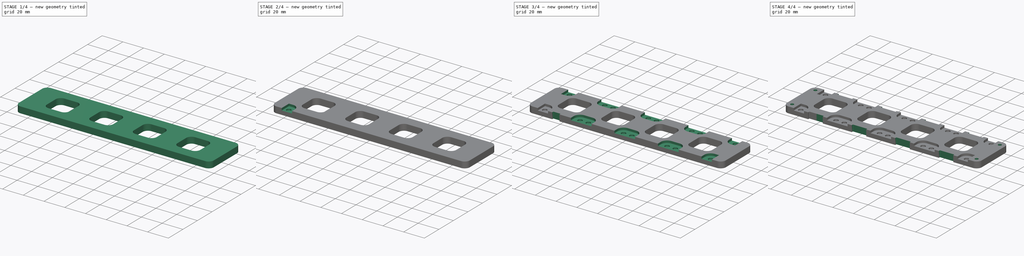
[diagram: build sequence overview — one tinted view per stage of 4, left to right]
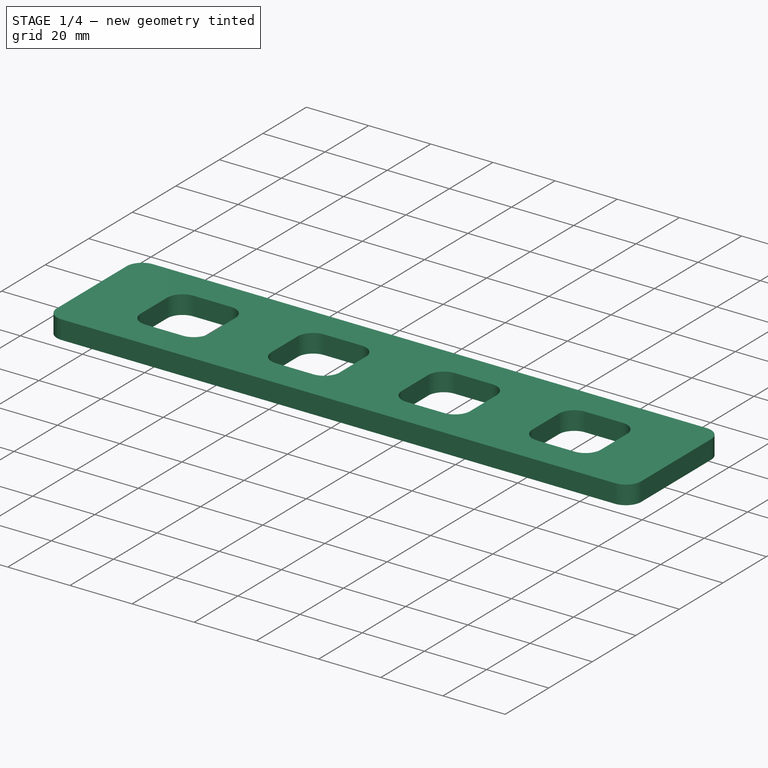
[diagram: stage 1 of 4 — iso view after this stage's code; geometry added in this stage tinted green]
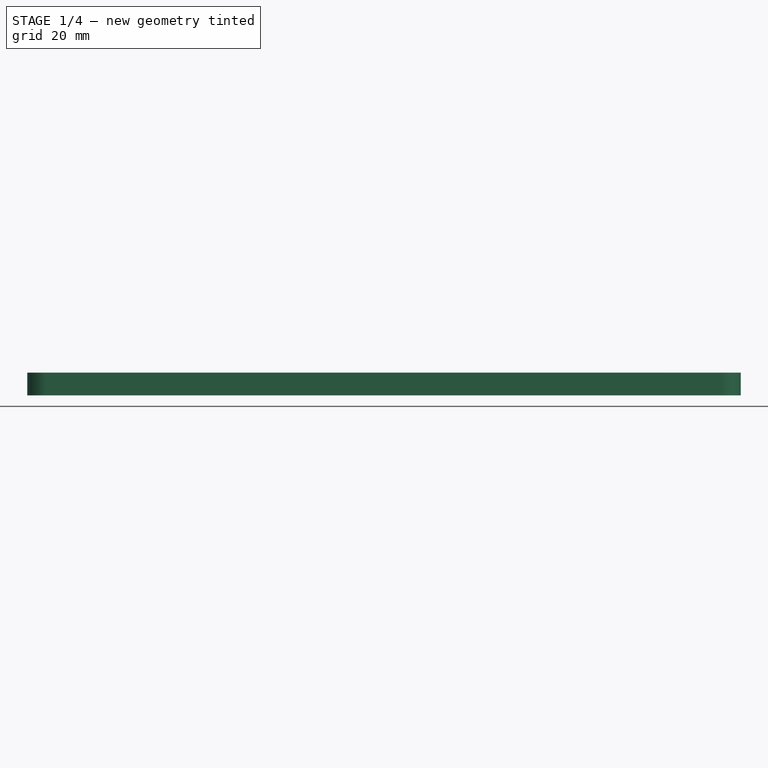
[diagram: stage 1 of 4 — front view after this stage's code; geometry added in this stage tinted green]
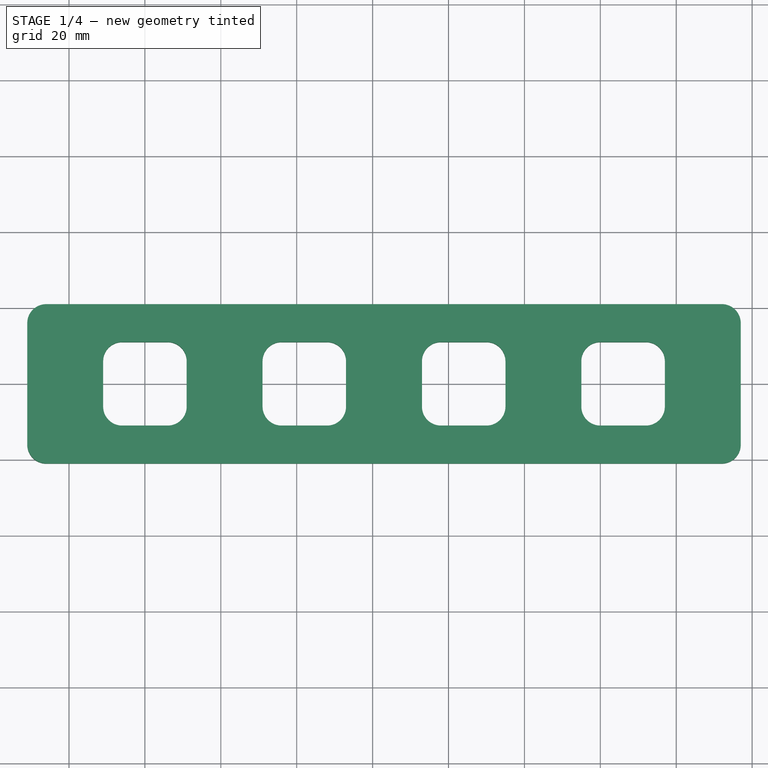
[diagram: stage 1 of 4 — top view after this stage's code; geometry added in this stage tinted green]
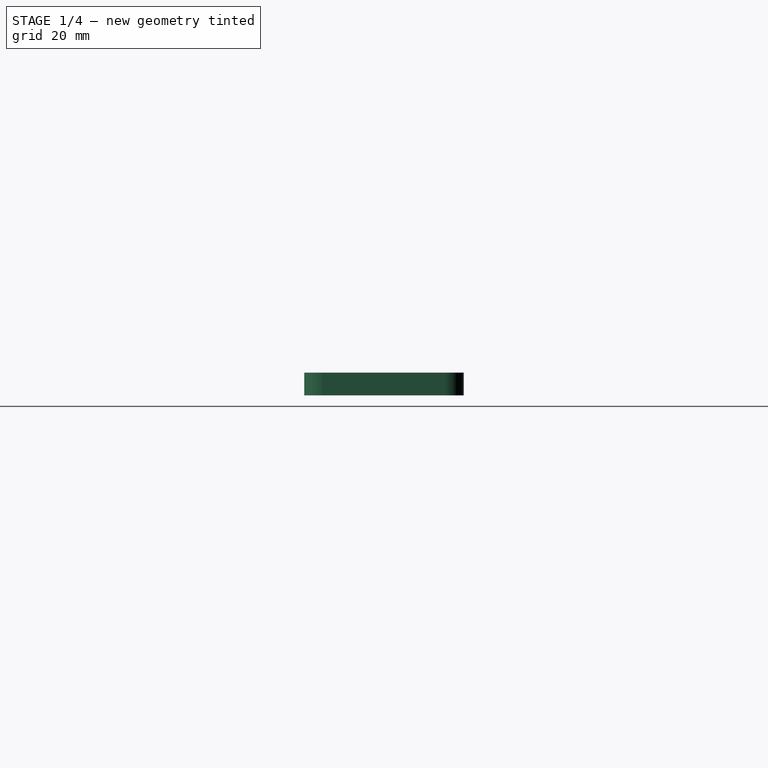
[diagram: stage 1 of 4 — right view after this stage's code; geometry added in this stage tinted green]
FCSTD DOCUMENT  (FreeCAD 0.19R)
Label: Bar
License: All rights reserved
LicenseURL: http://en.wikipedia.org/wiki/All_rights_reserved
objects: Sketcher::SketchObject×8, PartDesign::Mirrored×5, PartDesign::Pocket×4, PartDesign::LinearPattern×4, PartDesign::MultiTransform×3, PartDesign::Hole×2, PartDesign::Pad×1, PartDesign::Body×1
note: 35 computed .brp shape members not serialized (recipe doc carries the construction recipe); baked Part::Feature solids carry a one-line shape summary decoded from their .brp

FEATURE [Sketcher::SketchObject] Sketch  label="base_sketch"
  FullyConstrained = true
  MapMode = 5
  Support = -> [XY_Plane]
  sketch-geometry (12):
    g0: LineSegment StartX=-26 StartY=-21 StartZ=0 EndX=152 EndY=-21 EndZ=0
    g1: LineSegment StartX=157 StartY=-16 StartZ=0 EndX=157 EndY=16 EndZ=0
    g2: LineSegment StartX=152 StartY=21 StartZ=0 EndX=-26 EndY=21 EndZ=0
    g3: LineSegment StartX=-31 StartY=16 StartZ=0 EndX=-31 EndY=-16 EndZ=0
    g4: ArcOfCircle CenterX=-26 CenterY=16 CenterZ=0 NormalX=0 NormalY=0 NormalZ=1 AngleXU=0 Radius=5 StartAngle=1.5708 EndAngle=3.14159
    g5: GeomPoint X=-31 Y=21 Z=0
    g6: ArcOfCircle CenterX=-26 CenterY=-16 CenterZ=0 NormalX=0 NormalY=0 NormalZ=1 AngleXU=0 Radius=5 StartAngle=3.14159 EndAngle=4.71239
    g7: GeomPoint X=-31 Y=-21 Z=0
    g8: ArcOfCircle CenterX=152 CenterY=-16 CenterZ=0 NormalX=0 NormalY=0 NormalZ=1 AngleXU=0 Radius=5 StartAngle=4.71239 EndAngle=6.28319
    g9: GeomPoint X=157 Y=-21 Z=0
    g10: ArcOfCircle CenterX=152 CenterY=16 CenterZ=0 NormalX=0 NormalY=0 NormalZ=1 AngleXU=0 Radius=5 StartAngle=0 EndAngle=1.5708
    g11: GeomPoint X=157 Y=21 Z=0
  constraints (28):
    c: Horizontal(g0)
    c: Horizontal(g2)
    c: Vertical(g1)
    c: Vertical(g3)
    c: Distance(g-1,g3) = 31
    c: Distance(g7,g5) = 42
    c: Distance(g-1,g0) = 21
    c: Distance(g11,g5) = 188
    c: PointOnObject(g5,g2)
    c: PointOnObject(g5,g3)
    c: Tangent(g2,g4) = -1.5708
    c: Tangent(g3,g4) = -1.5708
    c: PointOnObject(g7,g3)
    c: PointOnObject(g7,g0)
    c: Tangent(g3,g6) = -1.5708
    c: Tangent(g0,g6) = -1.5708
    c: PointOnObject(g9,g0)
    c: PointOnObject(g9,g1)
    c: Tangent(g0,g8) = -1.5708
    c: Tangent(g1,g8) = -1.5708
    c: PointOnObject(g11,g1)
    c: PointOnObject(g11,g2)
    c: Tangent(g1,g10) = -1.5708
    c: Tangent(g2,g10) = -1.5708
    c: Radius(g6) = 5
    c: Equal(g10,g6)
    c: Equal(g8,g6)
    c: Equal(g4,g6)
FEATURE [PartDesign::Pad] Pad  label="base_pad"
  Direction = (1,1,1)
  Length = 6
  Length2 = 100
  Midplane = true
  Profile = -> Sketch
  Type = 0
FEATURE [Sketcher::SketchObject] Sketch001  label="center_hole_sketch"
  FullyConstrained = true
  MapMode = 5
  Placement = pos=(0,0,3) rot=(0,0,1;0rad)
  Support = -> [Pad]
  sketch-geometry (12):
    g0: LineSegment StartX=-6 StartY=-11 StartZ=0 EndX=6 EndY=-11 EndZ=0
    g1: LineSegment StartX=11 StartY=-6 StartZ=0 EndX=11 EndY=6 EndZ=0
    g2: LineSegment StartX=6 StartY=11 StartZ=0 EndX=-6 EndY=11 EndZ=0
    g3: LineSegment StartX=-11 StartY=6 StartZ=0 EndX=-11 EndY=-6 EndZ=0
    g4: ArcOfCircle CenterX=6 CenterY=-6 CenterZ=0 NormalX=0 NormalY=0 NormalZ=1 AngleXU=0 Radius=5 StartAngle=4.71239 EndAngle=6.28319
    g5: GeomPoint X=11 Y=-11 Z=0
    g6: ArcOfCircle CenterX=6 CenterY=6 CenterZ=0 NormalX=0 NormalY=0 NormalZ=1 AngleXU=0 Radius=5 StartAngle=0 EndAngle=1.5708
    g7: GeomPoint X=11 Y=11 Z=0
    g8: ArcOfCircle CenterX=-6 CenterY=6 CenterZ=0 NormalX=0 NormalY=0 NormalZ=1 AngleXU=0 Radius=5 StartAngle=1.5708 EndAngle=3.14159
    g9: GeomPoint X=-11 Y=11 Z=0
    g10: ArcOfCircle CenterX=-6 CenterY=-6 CenterZ=0 NormalX=0 NormalY=0 NormalZ=1 AngleXU=0 Radius=5 StartAngle=3.14159 EndAngle=4.71239
    g11: GeomPoint X=-11 Y=-11 Z=0
  constraints (27):
    c: Horizontal(g0)
    c: Horizontal(g2)
    c: Vertical(g1)
    c: Vertical(g3)
    c: Symmetric(g7,g11,g-1)
    c: DistanceX(g9,g7) = 22
    c: DistanceY(g5,g7) = 22
    c: PointOnObject(g5,g1)
    c: PointOnObject(g5,g0)
    c: Tangent(g1,g4) = -1.5708
    c: Tangent(g0,g4) = -1.5708
    c: PointOnObject(g7,g2)
    c: PointOnObject(g7,g1)
    c: Tangent(g2,g6) = -1.5708
    c: Tangent(g1,g6) = -1.5708
    c: PointOnObject(g9,g2)
    c: PointOnObject(g9,g3)
    c: Tangent(g2,g8) = -1.5708
    c: Tangent(g3,g8) = -1.5708
    c: PointOnObject(g11,g3)
    c: PointOnObject(g11,g0)
    c: Tangent(g3,g10) = -1.5708
    c: Tangent(g0,g10) = -1.5708
    c: Radius(g10) = 5
    c: Equal(g4,g10)
    c: Equal(g10,g8)
    c: Equal(g10,g6)
FEATURE [PartDesign::Pocket] Pocket  label="center_hole"
  BaseFeature = -> Pad
  Length = 5
  Length2 = 100
  Profile = -> Sketch001
  Type = 1
FEATURE [PartDesign::LinearPattern] LinearPattern  label="center_hole_array"
  BaseFeature = -> Pocket
  Direction = -> Sketch001 [H_Axis]
  Length = 126
  Occurrences = 4
  Originals = -> [Pocket]
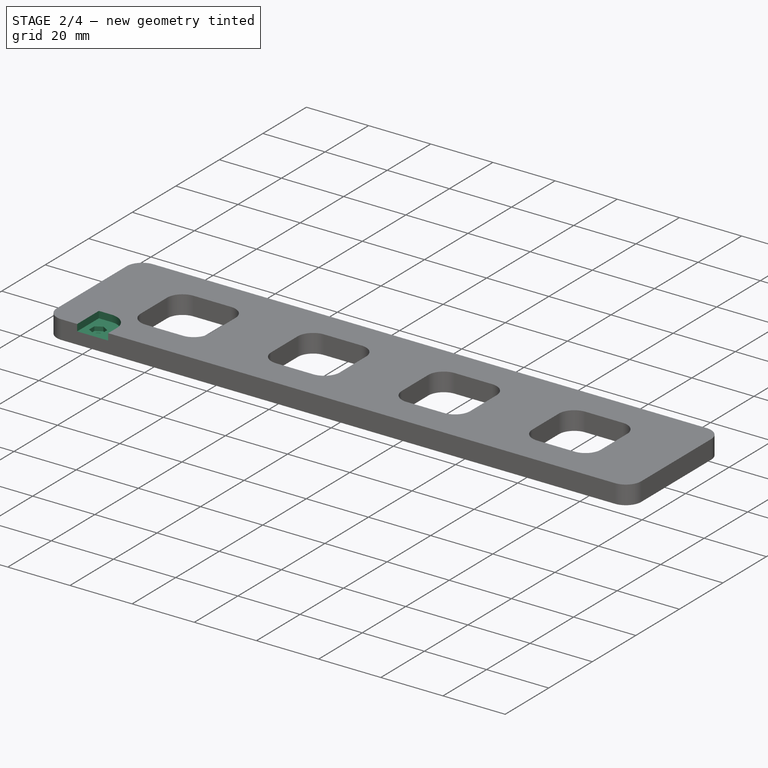
[diagram: stage 2 of 4 — iso view after this stage's code; geometry added in this stage tinted green]
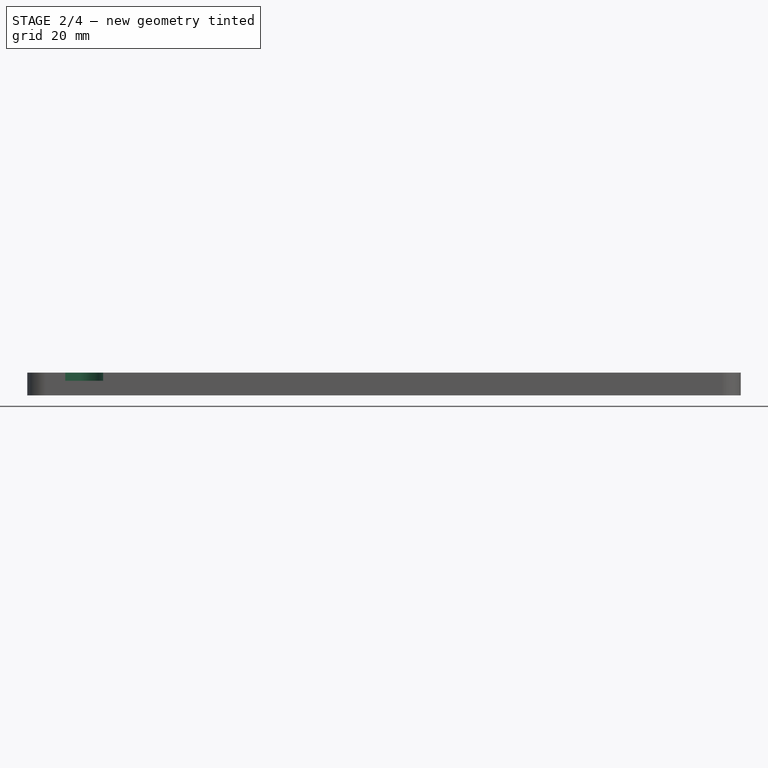
[diagram: stage 2 of 4 — front view after this stage's code; geometry added in this stage tinted green]
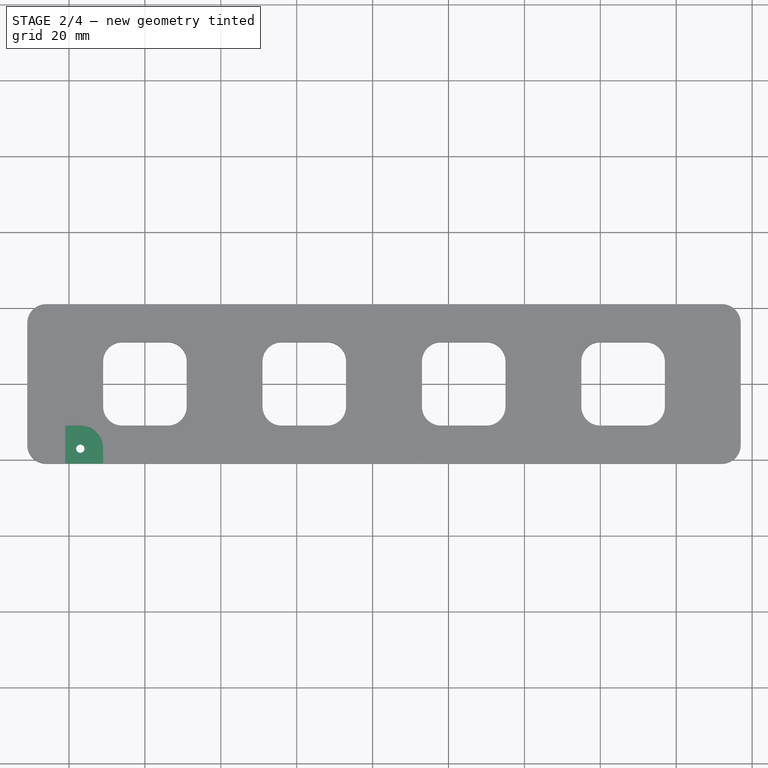
[diagram: stage 2 of 4 — top view after this stage's code; geometry added in this stage tinted green]
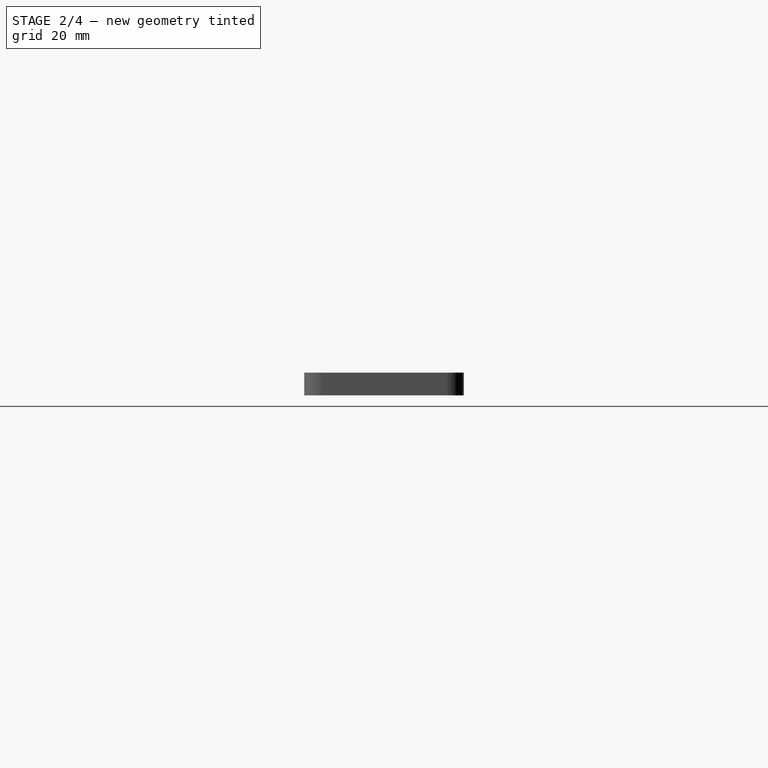
[diagram: stage 2 of 4 — right view after this stage's code; geometry added in this stage tinted green]
FEATURE [Sketcher::SketchObject] Sketch002  label="thumb_hole_sketch"
  ExternalGeometry = -> [LinearPattern]
  FullyConstrained = true
  MapMode = 5
  Placement = pos=(0,0,3) rot=(0,0,1;0rad)
  Support = -> [LinearPattern]
  sketch-geometry (5):
    g0: ArcOfCircle CenterX=-17.02 CenterY=-17.02 CenterZ=0 NormalX=0 NormalY=0 NormalZ=1 AngleXU=0 Radius=6 StartAngle=2e-16 EndAngle=1.5708
    g1: LineSegment StartX=-11.02 StartY=-17.02 StartZ=0 EndX=-11.02 EndY=-21 EndZ=0
    g2: LineSegment StartX=-21 StartY=-21 StartZ=0 EndX=-21 EndY=-11.02 EndZ=0
    g3: LineSegment StartX=-21 StartY=-21 StartZ=0 EndX=-11.02 EndY=-21 EndZ=0
    g4: LineSegment StartX=-17.02 StartY=-11.02 StartZ=0 EndX=-21 EndY=-11.02 EndZ=0
  constraints (14):
    c: Distance(g0,g-2) = 17.02
    c: Distance(g0,g-1) = 17.02
    c: Radius(g0) = 6
    c: PointOnObject(g1,g-3)
    c: PointOnObject(g2,g-3)
    c: Tangent(g0,g1) = 1.5708
    c: Vertical(g1)
    c: Vertical(g2)
    c: Coincident(g3,g2)
    c: Coincident(g3,g1)
    c: Distance(g2,g-2) = 21
    c: Horizontal(g4)
    c: Coincident(g2,g4)
    c: Tangent(g0,g4) = -1.5708
FEATURE [PartDesign::Pocket] Pocket001  label="thumb_hole"
  BaseFeature = -> LinearPattern
  Length = 5
  Length2 = 100
  Offset = -3.85
  Profile = -> Sketch002
  Type = 2
FEATURE [Sketcher::SketchObject] Sketch003  label="M2_hex_countersink_sketch"
  ExternalGeometry = -> [Pocket001]
  FullyConstrained = true
  MapMode = 5
  Placement = pos=(0,0,0.85) rot=(0,0,1;0rad)
  sketch-geometry (7):
    g0: LineSegment StartX=-17.02 StartY=-14.6182 StartZ=0 EndX=-19.1 EndY=-15.8191 EndZ=0
    g1: LineSegment StartX=-19.1 StartY=-15.8191 StartZ=0 EndX=-19.1 EndY=-18.2209 EndZ=0
    g2: LineSegment StartX=-19.1 StartY=-18.2209 StartZ=0 EndX=-17.02 EndY=-19.4218 EndZ=0
    g3: LineSegment StartX=-17.02 StartY=-19.4218 StartZ=0 EndX=-14.94 EndY=-18.2209 EndZ=0
    g4: LineSegment StartX=-14.94 StartY=-18.2209 StartZ=0 EndX=-14.94 EndY=-15.8191 EndZ=0
    g5: LineSegment StartX=-14.94 StartY=-15.8191 StartZ=0 EndX=-17.02 EndY=-14.6182 EndZ=0
    g6: Circle CenterX=-17.02 CenterY=-17.02 CenterZ=0 NormalX=0 NormalY=0 NormalZ=1 AngleXU=0 Radius=2.40178
  constraints (16):
    c: Coincident(g0,g1)
    c: Coincident(g1,g2)
    c: Coincident(g2,g3)
    c: Coincident(g3,g4)
    c: Coincident(g4,g5)
    c: Coincident(g5,g0)
    c: Equal(g0, g1-g5) x5
    c: PointOnObject(g0,g6)
    c: PointOnObject(g1,g6)
    c: PointOnObject(g2,g6)
    c: PointOnObject(g3,g6)
    c: PointOnObject(g4,g6)
    c: PointOnObject(g5,g6)
    c: Vertical(g1)
    c: DistanceX(g0,g4) = 4.16
    c: Coincident(g6,g-3)
FEATURE [PartDesign::Pocket] Pocket002  label="M2_hex_countersink"
  BaseFeature = -> Pocket001
  Length = 1.35
  Length2 = 100
  Profile = -> Sketch003
  Type = 0
FEATURE [Sketcher::SketchObject] Sketch004  label="M2_hole_sketch"
  ExternalGeometry = -> [Pocket002]
  FullyConstrained = true
  MapMode = 5
  Placement = pos=(0,0,-0.5) rot=(0,0,1;0rad)
  Support = -> [Pocket002]
  sketch-geometry (1):
    g0: Circle CenterX=-17.02 CenterY=-17.02 CenterZ=0 NormalX=0 NormalY=0 NormalZ=1 AngleXU=0 Radius=1.05
  constraints (2):
    c: Coincident(g0,g-3)
    c: Radius(g0) = 1.05
FEATURE [PartDesign::Hole] Hole  label="M2_hole"
  BaseFeature = -> Pocket002
  Depth = 25
  DepthType = 1
  Diameter = 2.2
  DrillForDepth = false
  DrillPoint = 1
  DrillPointAngle = 118
  HoleCutCountersinkAngle = 90
  HoleCutCustomValues = false
  HoleCutDepth = 0
  HoleCutDiameter = 6.1
  HoleCutType = 0
  ModelActualThread = false
  Profile = -> Sketch004
  Tapered = false
  TaperedAngle = 90
  ThreadAngle = 0
  ThreadClass = 0
  ThreadCutOffInner = 0
  ThreadCutOffOuter = 0
  ThreadDirection = 0
  ThreadFit = 1
  ThreadPitch = 0
  ThreadSize = 6
  ThreadType = 1
  Threaded = false
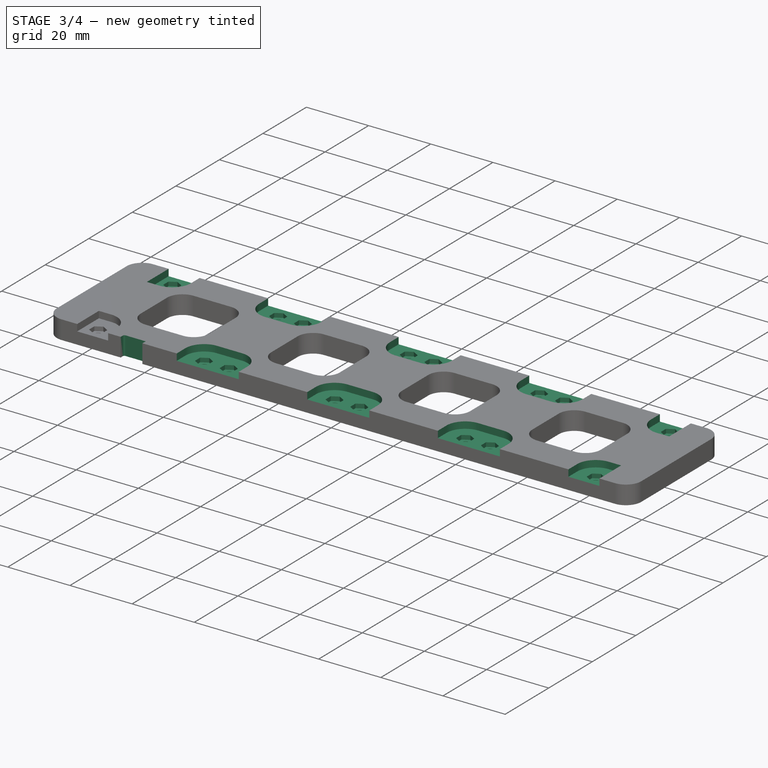
[diagram: stage 3 of 4 — iso view after this stage's code; geometry added in this stage tinted green]
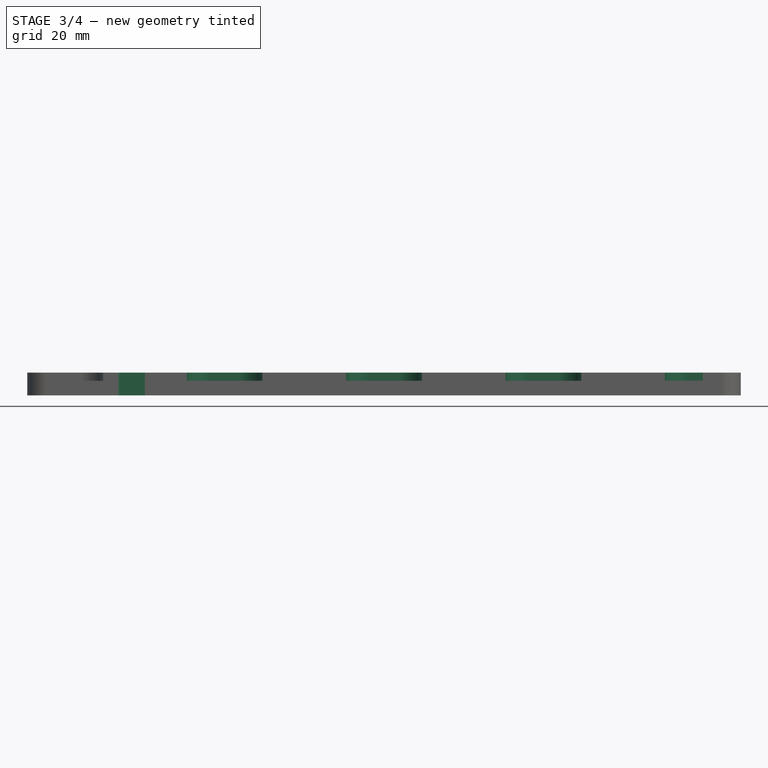
[diagram: stage 3 of 4 — front view after this stage's code; geometry added in this stage tinted green]
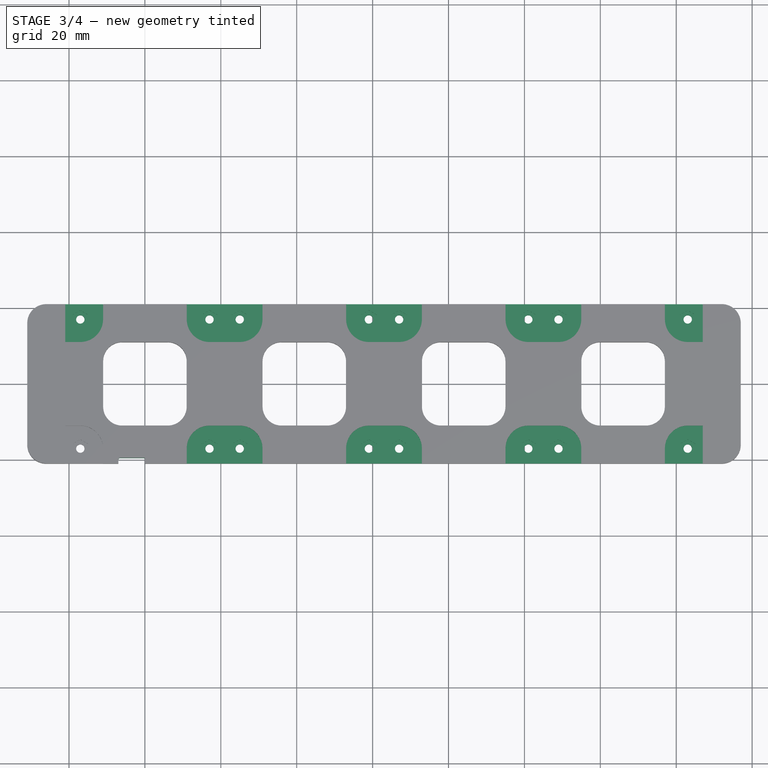
[diagram: stage 3 of 4 — top view after this stage's code; geometry added in this stage tinted green]
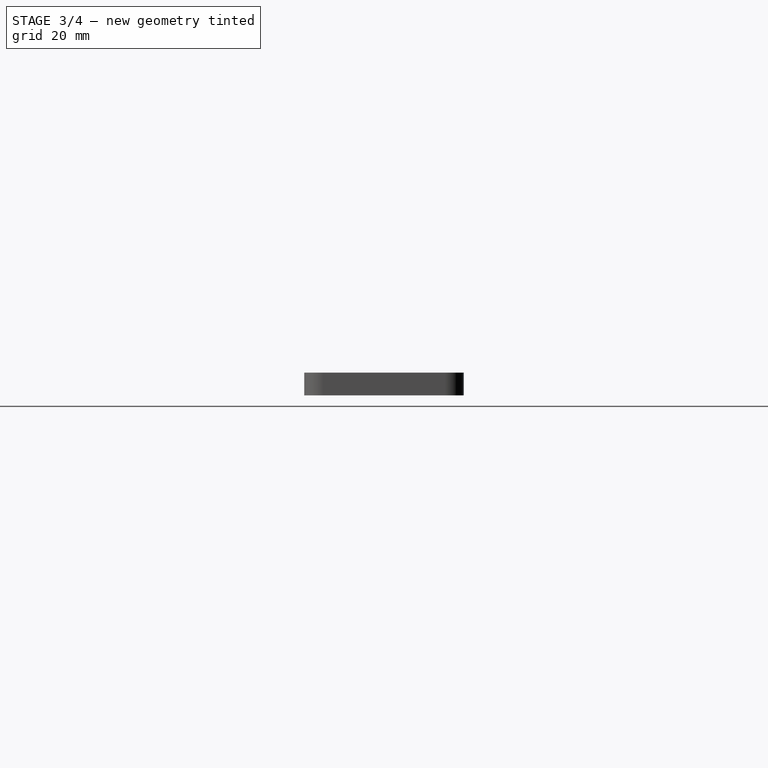
[diagram: stage 3 of 4 — right view after this stage's code; geometry added in this stage tinted green]
FEATURE [PartDesign::Mirrored] Mirrored
  MirrorPlane = -> Sketch002 [V_Axis]
FEATURE [PartDesign::Mirrored] Mirrored001
  MirrorPlane = -> Sketch002 [H_Axis]
FEATURE [PartDesign::LinearPattern] LinearPattern001
  Direction = -> Sketch002 [H_Axis]
  Length = 126
  Occurrences = 4
FEATURE [PartDesign::MultiTransform] MultiTransform  label="M2_system_array"
  BaseFeature = -> Hole
  Originals = -> [Pocket001,Pocket002,Hole]
  Transformations = -> [Mirrored,LinearPattern001,Mirrored001]
FEATURE [Sketcher::SketchObject] Sketch005  label="cable_hole_sketch"
  ExternalGeometry = -> [MultiTransform]
  FullyConstrained = true
  MapMode = 5
  Placement = pos=(0,0,3) rot=(0,0,1;0rad)
  Support = -> [MultiTransform]
  sketch-geometry (6):
    g0: LineSegment StartX=-7 StartY=-21 StartZ=0 EndX=0 EndY=-21 EndZ=0
    g1: LineSegment StartX=0 StartY=-21 StartZ=0 EndX=0 EndY=-19.5 EndZ=0
    g2: LineSegment StartX=0 StartY=-19.5 StartZ=0 EndX=-6.5 EndY=-19.5 EndZ=0
    g3: LineSegment StartX=-7 StartY=-20 StartZ=0 EndX=-7 EndY=-21 EndZ=0
    g4: ArcOfCircle CenterX=-6.5 CenterY=-20 CenterZ=0 NormalX=0 NormalY=0 NormalZ=1 AngleXU=0 Radius=0.5 StartAngle=1.5708 EndAngle=3.14159
    g5: GeomPoint X=-7 Y=-19.5 Z=0
  constraints (16):
    c: Coincident(g0,g1)
    c: Coincident(g1,g2)
    c: Coincident(g3,g0)
    c: Horizontal(g0)
    c: Horizontal(g2)
    c: Vertical(g1)
    c: Vertical(g3)
    c: PointOnObject(g0,g-3)
    c: Vertical(g1,g-1)
    c: PointOnObject(g5,g3)
    c: PointOnObject(g5,g2)
    c: Tangent(g3,g4) = -1.5708
    c: Tangent(g2,g4) = -1.5708
    c: Radius(g4) = 0.5
    c: DistanceY(g1,g1) = 1.5
    c: DistanceX(g0,g0) = 7
FEATURE [PartDesign::Pocket] Pocket003  label="cable_hole"
  BaseFeature = -> MultiTransform
  Length = 5
  Length2 = 100
  Profile = -> Sketch005
  Type = 1
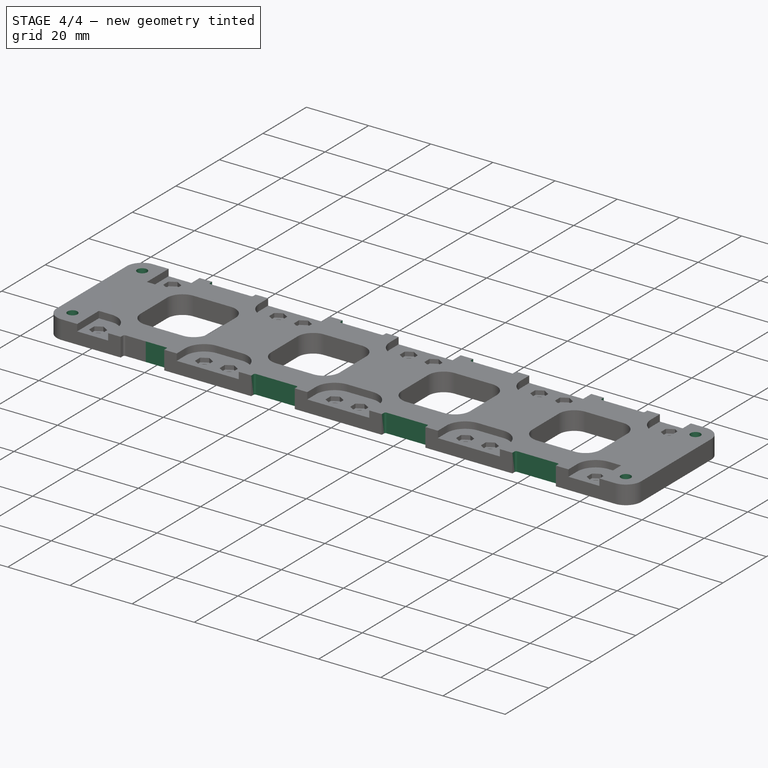
[diagram: stage 4 of 4 — iso view after this stage's code; geometry added in this stage tinted green]
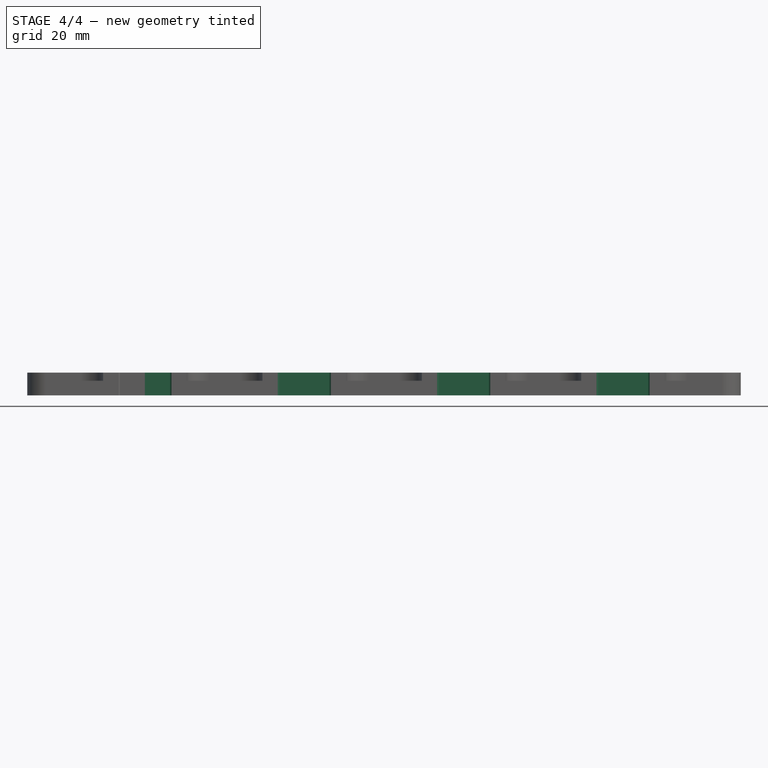
[diagram: stage 4 of 4 — front view after this stage's code; geometry added in this stage tinted green]
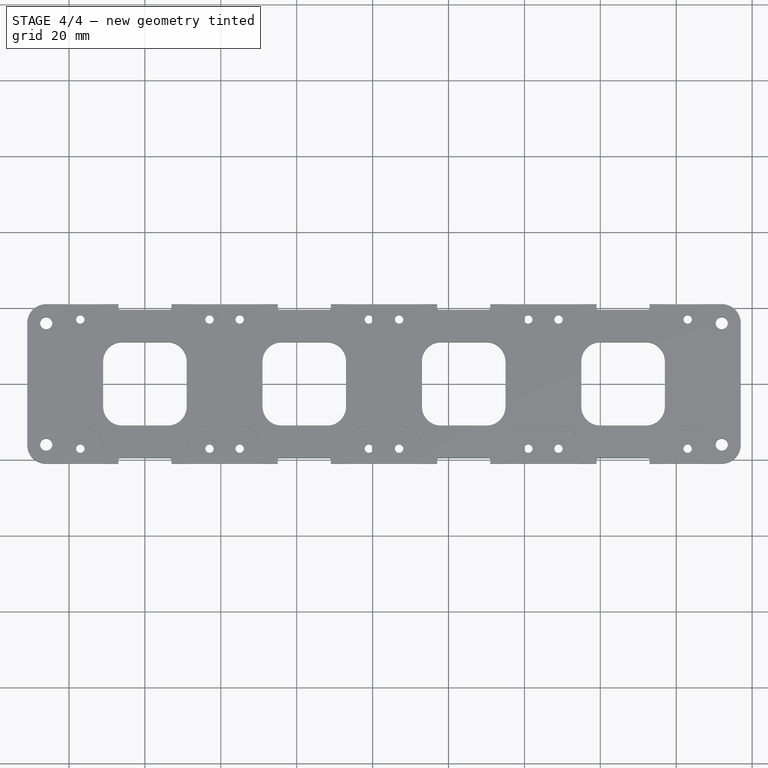
[diagram: stage 4 of 4 — top view after this stage's code; geometry added in this stage tinted green]
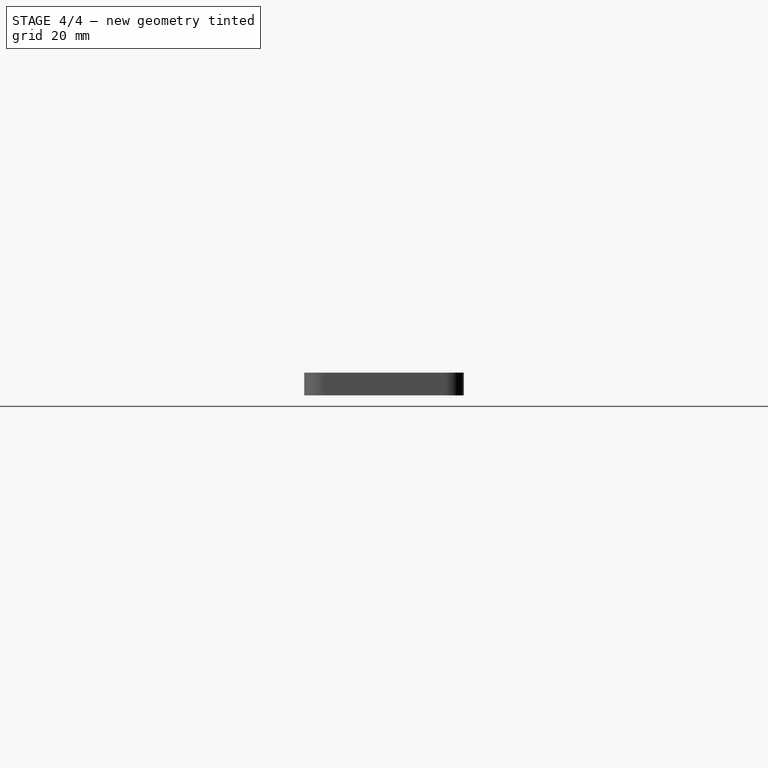
[diagram: stage 4 of 4 — right view after this stage's code; geometry added in this stage tinted green]
FEATURE [PartDesign::Mirrored] Mirrored002
  MirrorPlane = -> Sketch005 [V_Axis]
FEATURE [PartDesign::Mirrored] Mirrored003
  MirrorPlane = -> Sketch005 [H_Axis]
FEATURE [PartDesign::LinearPattern] LinearPattern002
  Direction = -> Sketch005 [H_Axis]
  Length = 126
  Occurrences = 4
FEATURE [PartDesign::MultiTransform] MultiTransform001  label="cable_hole_array"
  BaseFeature = -> Pocket003
  Originals = -> [Pocket003]
  Transformations = -> [Mirrored002,Mirrored003,LinearPattern002]
FEATURE [Sketcher::SketchObject] Sketch006  label="M3_hole_sketch"
  ExternalGeometry = -> [MultiTransform001]
  FullyConstrained = false
  MapMode = 5
  Placement = pos=(0,0,3) rot=(0,0,1;0rad)
  Support = -> [MultiTransform001]
  sketch-geometry (2):
    g0: GeomPoint X=-26 Y=-16 Z=0
    g1: Circle CenterX=-26 CenterY=-16 CenterZ=0 NormalX=0 NormalY=0 NormalZ=1 AngleXU=0 Radius=0.894573
  constraints (3):
    c: Distance(g0,g-3) = 5
    c: Distance(g0,g-4) = 5
    c: Coincident(g1,g0)
FEATURE [PartDesign::Hole] Hole001  label="M3_hole"
  BaseFeature = -> MultiTransform001
  Depth = 25
  DepthType = 1
  Diameter = 3.2
  DrillForDepth = false
  DrillPoint = 1
  DrillPointAngle = 118
  HoleCutCountersinkAngle = 90
  HoleCutCustomValues = false
  HoleCutDepth = 0
  HoleCutDiameter = 6.1
  HoleCutType = 0
  ModelActualThread = false
  Profile = -> Sketch006
  Tapered = false
  TaperedAngle = 90
  ThreadAngle = 0
  ThreadClass = 0
  ThreadCutOffInner = 0
  ThreadCutOffOuter = 0
  ThreadDirection = 0
  ThreadFit = 1
  ThreadPitch = 0
  ThreadSize = 9
  ThreadType = 1
  Threaded = false
FEATURE [PartDesign::Mirrored] Mirrored004
  MirrorPlane = -> Sketch006 [H_Axis]
FEATURE [PartDesign::LinearPattern] LinearPattern004
  Direction = -> Sketch006 [H_Axis]
  Length = 178
  Occurrences = 2
FEATURE [PartDesign::MultiTransform] MultiTransform002  label="M3_hole_array"
  BaseFeature = -> Hole001
  Originals = -> [Hole001]
  Transformations = -> [Mirrored004,LinearPattern004]
FEATURE [Sketcher::SketchObject] Sketch007  label="remove3_sketch"
  ExternalGeometry = -> [MultiTransform002]
  FullyConstrained = true
  MapMode = 5
  Placement = pos=(0,0,3) rot=(0,0,1;0rad)
  Support = -> [MultiTransform002]
  sketch-geometry (4):
    g0: LineSegment StartX=21 StartY=-21 StartZ=0 EndX=157 EndY=-21 EndZ=0
    g1: LineSegment StartX=157 StartY=-21 StartZ=0 EndX=157 EndY=21 EndZ=0
    g2: LineSegment StartX=157 StartY=21 StartZ=0 EndX=21 EndY=21 EndZ=0
    g3: LineSegment StartX=21 StartY=21 StartZ=0 EndX=21 EndY=-21 EndZ=0
  constraints (11):
    c: Coincident(g0,g1)
    c: Coincident(g1,g2)
    c: Coincident(g2,g3)
    c: Coincident(g3,g0)
    c: Horizontal(g0)
    c: Horizontal(g2)
    c: Vertical(g1)
    c: Vertical(g3)
    c: Coincident(g0,g-3)
    c: Vertical(g1,g-5)
    c: Horizontal(g1,g-4)
FEATURE [PartDesign::Body] Body  label="Bar"
  Group = -> [Sketch,Pad,Sketch001,Pocket,LinearPattern,Sketch002,Pocket001,Sketch003,Pocket002,Sketch004,Hole,MultiTransform,Mirrored,Mirrored001,LinearPattern001,Sketch005,Pocket003,MultiTransform001,Mirrored002,Mirrored003,LinearPattern002,Sketch006,Hole001,MultiTransform002,Mirrored004,LinearPattern004,Sketch007]
  Origin = -> Origin
  Tip = -> MultiTransform002
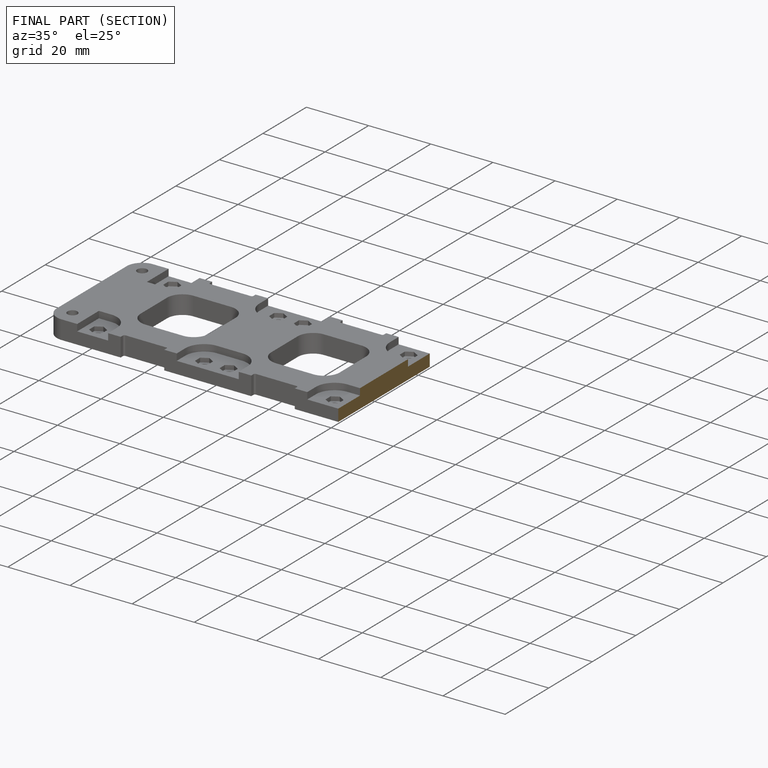
[diagram: finished part — half-section view (interior)]
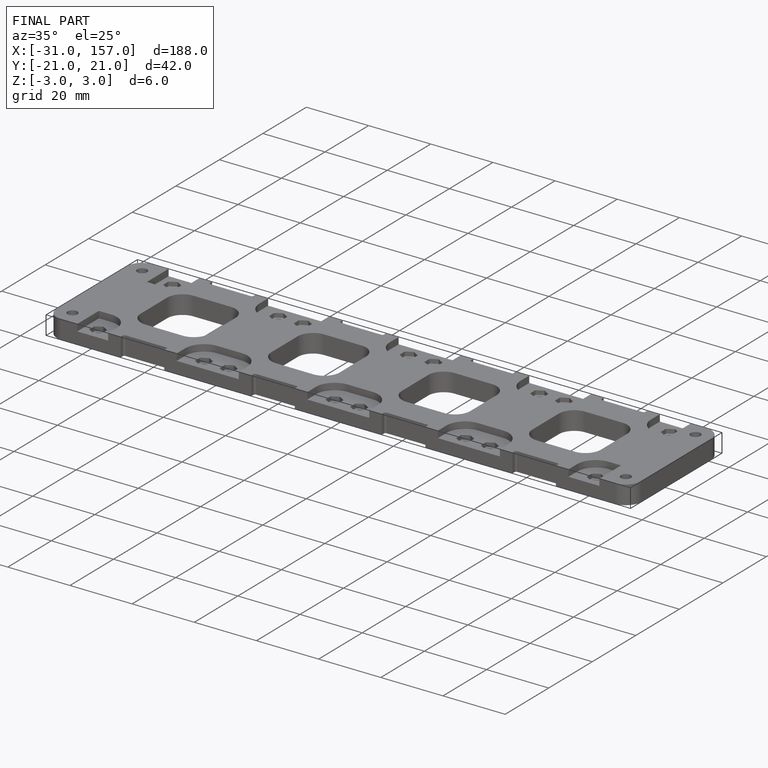
[diagram: finished part — iso view with bounding-box wireframe]
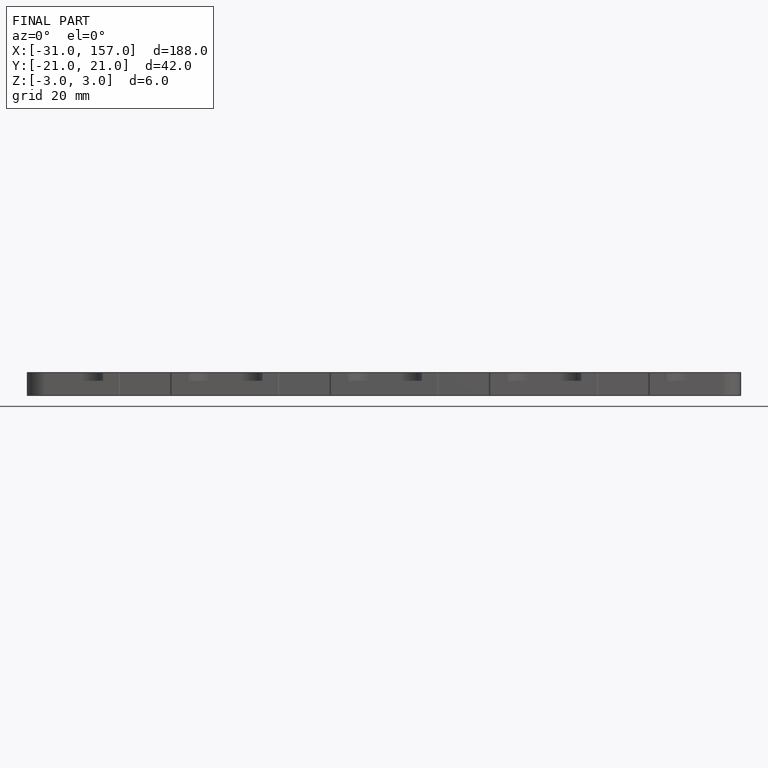
[diagram: finished part — front view with bounding-box wireframe]
